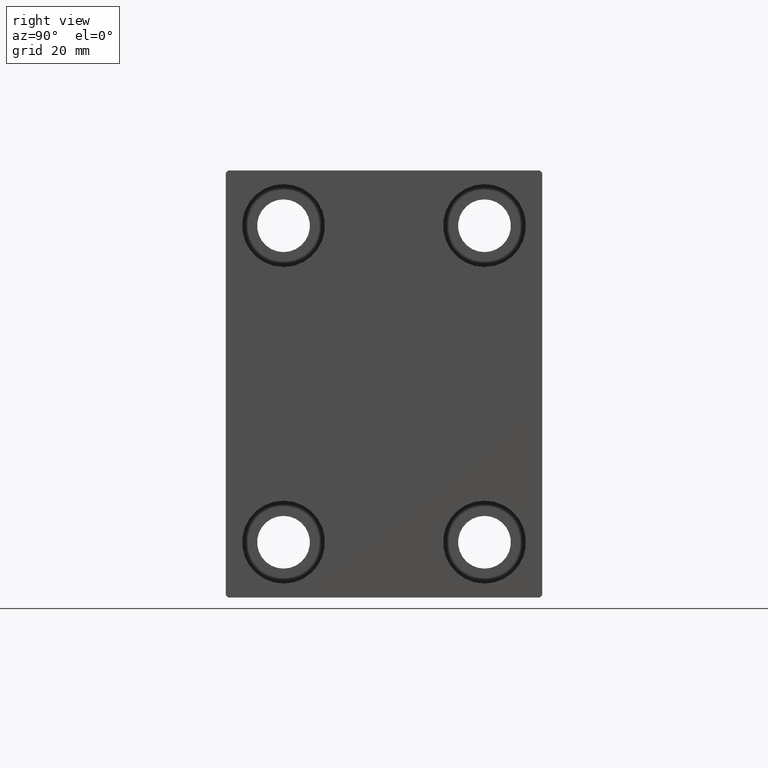
[diagram: clean part render]
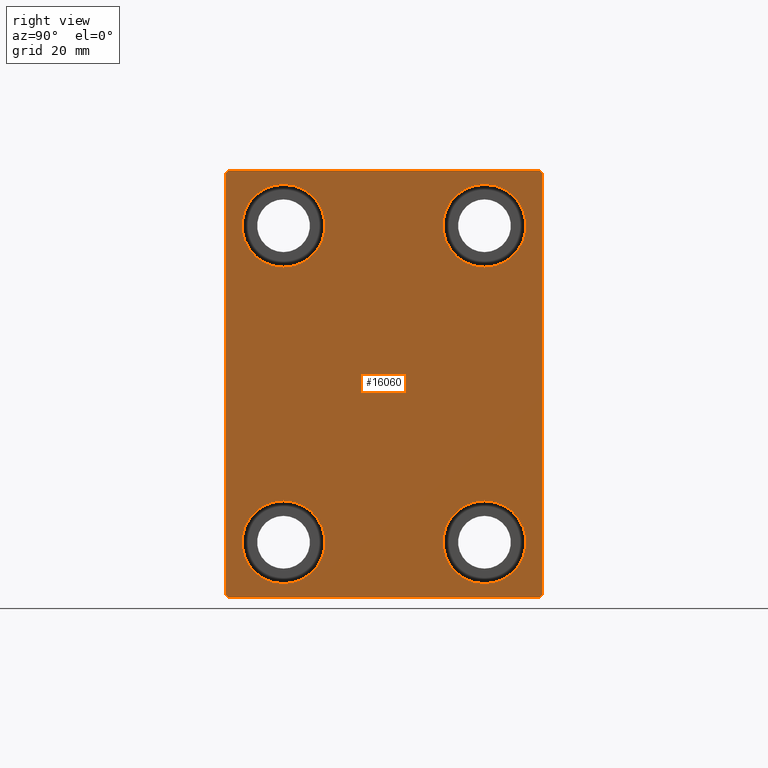
[diagram: same view with one face highlighted and labeled with its STEP entity id]
A machine part, right view. The second image highlights one B-rep face of the part: STEP entity #16060.
In plain terms, the highlighted planar face has unit normal (1, 0, 0).
Its self-contained STEP definition (entity closure, byte-faithful):
#15 = LINE ( 'NONE', #14017, #33464 ) ;
#333 = VERTEX_POINT ( 'NONE', #14892 ) ;
#651 = EDGE_LOOP ( 'NONE', ( #39288, #25331 ) ) ;
#1297 = CARTESIAN_POINT ( 'NONE',  ( 88.00000000000000000, 0.000000000000000000, 0.000000000000000000 ) ) ;
#1550 = ORIENTED_EDGE ( 'NONE', *, *, #36439, .T. ) ;
#1576 = DIRECTION ( 'NONE',  ( 0.000000000000000000, -0.7071067811865378028, -0.7071067811865573427 ) ) ;
#2103 = CIRCLE ( 'NONE', #26919, 8.250000000000000000 ) ;
#3537 = CARTESIAN_POINT ( 'NONE',  ( 88.00000000000000000, 20.00000000000000355, 31.50000000000000000 ) ) ;
#3540 = EDGE_CURVE ( 'NONE', #10620, #333, #5756, .T. ) ;
#3723 = CARTESIAN_POINT ( 'NONE',  ( 88.00000000000000000, 20.00000000000000355, 31.50000000000000000 ) ) ;
#3974 = FACE_BOUND ( 'NONE', #26768, .T. ) ;
#4188 = FACE_BOUND ( 'NONE', #651, .T. ) ;
#4496 = VERTEX_POINT ( 'NONE', #42811 ) ;
#4637 = DIRECTION ( 'NONE',  ( 0.000000000000000000, 0.000000000000000000, -1.000000000000000000 ) ) ;
#4848 = EDGE_CURVE ( 'NONE', #20509, #8484, #29615, .T. ) ;
#5024 = EDGE_CURVE ( 'NONE', #14469, #42453, #15, .T. ) ;
#5438 = VERTEX_POINT ( 'NONE', #42699 ) ;
#5756 = CIRCLE ( 'NONE', #33433, 8.249999999999992895 ) ;
#5764 = CARTESIAN_POINT ( 'NONE',  ( 88.00000000000000000, -20.00000000000000355, -23.24999999999999289 ) ) ;
#6144 = DIRECTION ( 'NONE',  ( -1.000000000000000000, -0.000000000000000000, -0.000000000000000000 ) ) ;
#6266 = DIRECTION ( 'NONE',  ( -0.000000000000000000, 0.7071067811865573427, -0.7071067811865378028 ) ) ;
#6508 = CIRCLE ( 'NONE', #29253, 8.249999999999992895 ) ;
#6663 = FACE_BOUND ( 'NONE', #31343, .T. ) ;
#6872 = CARTESIAN_POINT ( 'NONE',  ( 88.00000000000000000, 19.99999999999999645, -31.49999999999999289 ) ) ;
#7003 = DIRECTION ( 'NONE',  ( 0.000000000000000000, 0.000000000000000000, 1.000000000000000000 ) ) ;
#7515 = DIRECTION ( 'NONE',  ( -0.000000000000000000, -0.7071067811865474617, 0.7071067811865474617 ) ) ;
#7817 = VERTEX_POINT ( 'NONE', #12153 ) ;
#7896 = DIRECTION ( 'NONE',  ( -1.000000000000000000, -0.000000000000000000, -0.000000000000000000 ) ) ;
#8104 = AXIS2_PLACEMENT_3D ( 'NONE', #27317, #17515, #27092 ) ;
#8146 = CARTESIAN_POINT ( 'NONE',  ( 88.00000000000000000, 31.50000000000001421, -42.50000000000000711 ) ) ;
#8458 = LINE ( 'NONE', #24934, #29058 ) ;
#8484 = VERTEX_POINT ( 'NONE', #20404 ) ;
#8734 = EDGE_CURVE ( 'NONE', #13024, #4496, #40581, .T. ) ;
#9791 = CARTESIAN_POINT ( 'NONE',  ( 88.00000000000000000, -31.50000000000000000, -42.00000000000002132 ) ) ;
#9955 = DIRECTION ( 'NONE',  ( -1.000000000000000000, -0.000000000000000000, -0.000000000000000000 ) ) ;
#9986 = CARTESIAN_POINT ( 'NONE',  ( 88.00000000000000000, 31.50000000000000000, 42.50000000000000711 ) ) ;
#9987 = EDGE_CURVE ( 'NONE', #333, #10620, #6508, .T. ) ;
#10097 = VECTOR ( 'NONE', #6266, 1000.000000000000000 ) ;
#10414 = CARTESIAN_POINT ( 'NONE',  ( 88.00000000000000000, 36.74999999999999289, 36.74999999999999289 ) ) ;
#10620 = VERTEX_POINT ( 'NONE', #38745 ) ;
#11241 = CARTESIAN_POINT ( 'NONE',  ( 88.00000000000000000, -31.50000000000000000, 41.99999999999999289 ) ) ;
#11428 = CIRCLE ( 'NONE', #22080, 8.249999999999992895 ) ;
#11535 = VERTEX_POINT ( 'NONE', #21626 ) ;
#12153 = CARTESIAN_POINT ( 'NONE',  ( 88.00000000000000000, -19.99999999999999645, 23.25000000000000355 ) ) ;
#12287 = VECTOR ( 'NONE', #23544, 1000.000000000000000 ) ;
#12446 = EDGE_CURVE ( 'NONE', #8484, #5438, #25455, .T. ) ;
#13011 = AXIS2_PLACEMENT_3D ( 'NONE', #1297, #27768, #4637 ) ;
#13024 = VERTEX_POINT ( 'NONE', #32850 ) ;
#13317 = LINE ( 'NONE', #9986, #12287 ) ;
#14017 = CARTESIAN_POINT ( 'NONE',  ( 88.00000000000000000, -31.50000000000000000, 42.49999999999999289 ) ) ;
#14044 = EDGE_CURVE ( 'NONE', #5438, #11535, #21904, .T. ) ;
#14191 = VECTOR ( 'NONE', #42757, 1000.000000000000000 ) ;
#14469 = VERTEX_POINT ( 'NONE', #11241 ) ;
#14724 = EDGE_LOOP ( 'NONE', ( #1550, #20282, #21141, #43282, #18043, #41249, #37920, #33972 ) ) ;
#14795 = CARTESIAN_POINT ( 'NONE',  ( 88.00000000000000000, 36.75000000000045475, -36.74999999999943867 ) ) ;
#14892 = CARTESIAN_POINT ( 'NONE',  ( 88.00000000000000000, 20.00000000000000355, 39.74999999999999289 ) ) ;
#15045 = VERTEX_POINT ( 'NONE', #16003 ) ;
#16003 = CARTESIAN_POINT ( 'NONE',  ( 88.00000000000000000, -19.99999999999999645, 39.74999999999999289 ) ) ;
#16060 = ADVANCED_FACE ( 'NONE', ( #3974, #6663, #17531, #4188, #38445 ), #38219, .T. ) ;
#17093 = DIRECTION ( 'NONE',  ( 0.000000000000000000, 0.000000000000000000, 1.000000000000000000 ) ) ;
#17111 = DIRECTION ( 'NONE',  ( -1.000000000000000000, -0.000000000000000000, -0.000000000000000000 ) ) ;
#17238 = CARTESIAN_POINT ( 'NONE',  ( 88.00000000000000000, -19.99999999999999645, 31.50000000000000000 ) ) ;
#17260 = EDGE_CURVE ( 'NONE', #40307, #17287, #30829, .T. ) ;
#17287 = VERTEX_POINT ( 'NONE', #27982 ) ;
#17316 = EDGE_CURVE ( 'NONE', #11535, #20561, #30643, .T. ) ;
#17515 = DIRECTION ( 'NONE',  ( -1.000000000000000000, -0.000000000000000000, -0.000000000000000000 ) ) ;
#17531 = FACE_BOUND ( 'NONE', #17890, .T. ) ;
#17890 = EDGE_LOOP ( 'NONE', ( #23837, #38564 ) ) ;
#18043 = ORIENTED_EDGE ( 'NONE', *, *, #4848, .T. ) ;
#18938 = ORIENTED_EDGE ( 'NONE', *, *, #31075, .T. ) ;
#19961 = AXIS2_PLACEMENT_3D ( 'NONE', #33925, #6144, #30590 ) ;
#20282 = ORIENTED_EDGE ( 'NONE', *, *, #20971, .T. ) ;
#20320 = CARTESIAN_POINT ( 'NONE',  ( 88.00000000000000000, 30.99999999999998579, 42.50000000000000711 ) ) ;
#20385 = EDGE_CURVE ( 'NONE', #4496, #13024, #33968, .T. ) ;
#20404 = CARTESIAN_POINT ( 'NONE',  ( 88.00000000000000000, 31.00000000000002842, -42.50000000000000711 ) ) ;
#20509 = VERTEX_POINT ( 'NONE', #37239 ) ;
#20561 = VERTEX_POINT ( 'NONE', #20320 ) ;
#20867 = DIRECTION ( 'NONE',  ( -1.000000000000000000, -0.000000000000000000, -0.000000000000000000 ) ) ;
#20971 = EDGE_CURVE ( 'NONE', #40772, #14469, #8458, .T. ) ;
#21141 = ORIENTED_EDGE ( 'NONE', *, *, #5024, .T. ) ;
#21626 = CARTESIAN_POINT ( 'NONE',  ( 88.00000000000000000, 31.50000000000000000, 41.99999999999999289 ) ) ;
#21697 = DIRECTION ( 'NONE',  ( 0.000000000000000000, -1.632680918566406300E-16, 1.000000000000000000 ) ) ;
#21904 = LINE ( 'NONE', #8146, #39280 ) ;
#22069 = EDGE_CURVE ( 'NONE', #17287, #40307, #2103, .T. ) ;
#22080 = AXIS2_PLACEMENT_3D ( 'NONE', #33197, #30093, #23184 ) ;
#23184 = DIRECTION ( 'NONE',  ( 0.000000000000000000, 0.000000000000000000, 1.000000000000000000 ) ) ;
#23353 = CARTESIAN_POINT ( 'NONE',  ( 88.00000000000000000, -31.50000000000000000, -42.50000000000000711 ) ) ;
#23544 = DIRECTION ( 'NONE',  ( 0.000000000000000000, -1.000000000000000000, -2.202823461557850341E-16 ) ) ;
#23787 = DIRECTION ( 'NONE',  ( 0.000000000000000000, 0.000000000000000000, 1.000000000000000000 ) ) ;
#23837 = ORIENTED_EDGE ( 'NONE', *, *, #3540, .T. ) ;
#23897 = ORIENTED_EDGE ( 'NONE', *, *, #8734, .T. ) ;
#24316 = VECTOR ( 'NONE', #35263, 1000.000000000000000 ) ;
#24934 = CARTESIAN_POINT ( 'NONE',  ( 88.00000000000000000, -36.75000000000044054, 36.74999999999942446 ) ) ;
#25331 = ORIENTED_EDGE ( 'NONE', *, *, #17260, .T. ) ;
#25455 = LINE ( 'NONE', #14795, #24316 ) ;
#26768 = EDGE_LOOP ( 'NONE', ( #34740, #23897 ) ) ;
#26919 = AXIS2_PLACEMENT_3D ( 'NONE', #38135, #42739, #31459 ) ;
#27092 = DIRECTION ( 'NONE',  ( 0.000000000000000000, 0.000000000000000000, 1.000000000000000000 ) ) ;
#27317 = CARTESIAN_POINT ( 'NONE',  ( 88.00000000000000000, -20.00000000000000355, -31.49999999999999289 ) ) ;
#27716 = CIRCLE ( 'NONE', #37663, 8.249999999999992895 ) ;
#27768 = DIRECTION ( 'NONE',  ( 1.000000000000000000, 0.000000000000000000, 0.000000000000000000 ) ) ;
#27982 = CARTESIAN_POINT ( 'NONE',  ( 88.00000000000000000, -20.00000000000000355, -39.74999999999999289 ) ) ;
#28942 = EDGE_CURVE ( 'NONE', #15045, #7817, #27716, .T. ) ;
#29058 = VECTOR ( 'NONE', #1576, 1000.000000000000000 ) ;
#29253 = AXIS2_PLACEMENT_3D ( 'NONE', #3723, #9955, #30629 ) ;
#29615 = LINE ( 'NONE', #23353, #14191 ) ;
#30093 = DIRECTION ( 'NONE',  ( -1.000000000000000000, -0.000000000000000000, -0.000000000000000000 ) ) ;
#30413 = AXIS2_PLACEMENT_3D ( 'NONE', #6872, #20867, #17093 ) ;
#30590 = DIRECTION ( 'NONE',  ( 0.000000000000000000, 0.000000000000000000, 1.000000000000000000 ) ) ;
#30629 = DIRECTION ( 'NONE',  ( 0.000000000000000000, 0.000000000000000000, 1.000000000000000000 ) ) ;
#30643 = LINE ( 'NONE', #10414, #42908 ) ;
#30829 = CIRCLE ( 'NONE', #8104, 8.250000000000000000 ) ;
#31075 = EDGE_CURVE ( 'NONE', #7817, #15045, #11428, .T. ) ;
#31343 = EDGE_LOOP ( 'NONE', ( #18938, #32824 ) ) ;
#31459 = DIRECTION ( 'NONE',  ( 0.000000000000000000, 0.000000000000000000, 1.000000000000000000 ) ) ;
#32824 = ORIENTED_EDGE ( 'NONE', *, *, #28942, .T. ) ;
#32850 = CARTESIAN_POINT ( 'NONE',  ( 88.00000000000000000, 19.99999999999999645, -23.24999999999999289 ) ) ;
#33197 = CARTESIAN_POINT ( 'NONE',  ( 88.00000000000000000, -19.99999999999999645, 31.50000000000000000 ) ) ;
#33433 = AXIS2_PLACEMENT_3D ( 'NONE', #3537, #17111, #23787 ) ;
#33464 = VECTOR ( 'NONE', #34261, 1000.000000000000000 ) ;
#33925 = CARTESIAN_POINT ( 'NONE',  ( 88.00000000000000000, 19.99999999999999645, -31.49999999999999289 ) ) ;
#33968 = CIRCLE ( 'NONE', #30413, 8.250000000000000000 ) ;
#33972 = ORIENTED_EDGE ( 'NONE', *, *, #17316, .T. ) ;
#34261 = DIRECTION ( 'NONE',  ( 0.000000000000000000, 0.000000000000000000, -1.000000000000000000 ) ) ;
#34727 = EDGE_CURVE ( 'NONE', #42453, #20509, #36738, .T. ) ;
#34740 = ORIENTED_EDGE ( 'NONE', *, *, #20385, .T. ) ;
#35263 = DIRECTION ( 'NONE',  ( -0.000000000000000000, 0.7071067811865378028, 0.7071067811865573427 ) ) ;
#36439 = EDGE_CURVE ( 'NONE', #20561, #40772, #13317, .T. ) ;
#36738 = LINE ( 'NONE', #39864, #10097 ) ;
#37239 = CARTESIAN_POINT ( 'NONE',  ( 88.00000000000000000, -31.00000000000000000, -42.50000000000000711 ) ) ;
#37663 = AXIS2_PLACEMENT_3D ( 'NONE', #17238, #7896, #7003 ) ;
#37920 = ORIENTED_EDGE ( 'NONE', *, *, #14044, .T. ) ;
#38135 = CARTESIAN_POINT ( 'NONE',  ( 88.00000000000000000, -20.00000000000000355, -31.49999999999999289 ) ) ;
#38219 = PLANE ( 'NONE',  #13011 ) ;
#38445 = FACE_OUTER_BOUND ( 'NONE', #14724, .T. ) ;
#38564 = ORIENTED_EDGE ( 'NONE', *, *, #9987, .T. ) ;
#38745 = CARTESIAN_POINT ( 'NONE',  ( 88.00000000000000000, 20.00000000000000355, 23.25000000000000355 ) ) ;
#39280 = VECTOR ( 'NONE', #21697, 1000.000000000000000 ) ;
#39288 = ORIENTED_EDGE ( 'NONE', *, *, #22069, .T. ) ;
#39864 = CARTESIAN_POINT ( 'NONE',  ( 88.00000000000000000, -36.74999999999958078, -36.75000000000059686 ) ) ;
#40307 = VERTEX_POINT ( 'NONE', #5764 ) ;
#40581 = CIRCLE ( 'NONE', #19961, 8.250000000000000000 ) ;
#40772 = VERTEX_POINT ( 'NONE', #43695 ) ;
#41249 = ORIENTED_EDGE ( 'NONE', *, *, #12446, .T. ) ;
#42453 = VERTEX_POINT ( 'NONE', #9791 ) ;
#42699 = CARTESIAN_POINT ( 'NONE',  ( 88.00000000000000000, 31.50000000000001421, -42.00000000000000711 ) ) ;
#42739 = DIRECTION ( 'NONE',  ( -1.000000000000000000, -0.000000000000000000, -0.000000000000000000 ) ) ;
#42757 = DIRECTION ( 'NONE',  ( 0.000000000000000000, 1.000000000000000000, 0.000000000000000000 ) ) ;
#42811 = CARTESIAN_POINT ( 'NONE',  ( 88.00000000000000000, 19.99999999999999645, -39.74999999999999289 ) ) ;
#42908 = VECTOR ( 'NONE', #7515, 1000.000000000000114 ) ;
#43282 = ORIENTED_EDGE ( 'NONE', *, *, #34727, .T. ) ;
#43695 = CARTESIAN_POINT ( 'NONE',  ( 88.00000000000000000, -31.00000000000001421, 42.49999999999999289 ) ) ;